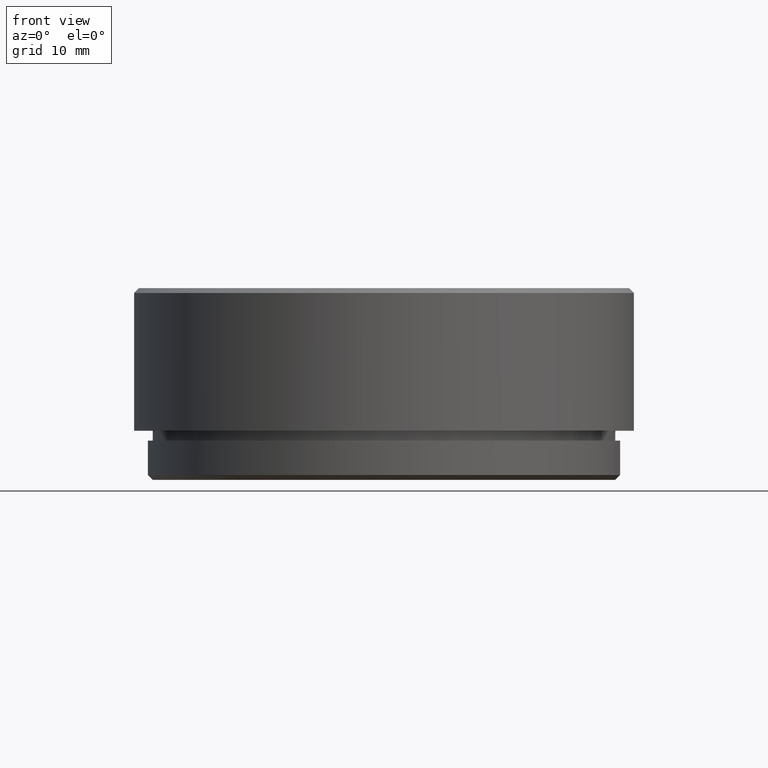
[diagram: clean part render]
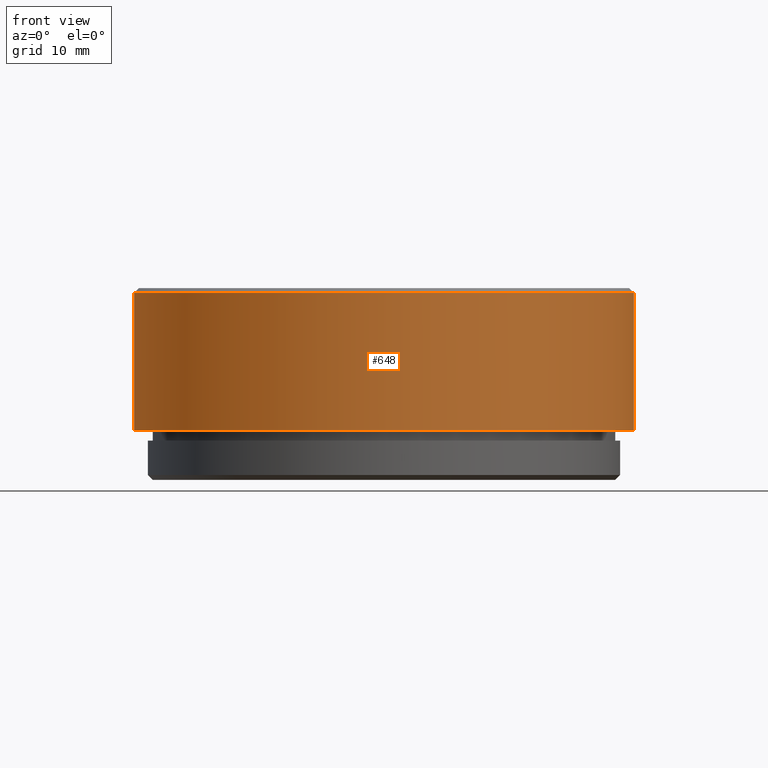
[diagram: same view with one face highlighted and labeled with its STEP entity id]
A machine part, front view. The second image highlights one B-rep face of the part: STEP entity #648.
In plain terms, the highlighted cylindrical surface (partial cylindrical patch) has radius 25.4 mm, axis along (-0, -0, -1).
Its self-contained STEP definition (entity closure, byte-faithful):
#63 = CARTESIAN_POINT ( 'NONE',  ( -25.39999999999999858, 0.000000000000000000, 5.000000000000000000 ) ) ;
#65 = VERTEX_POINT ( 'NONE', #1791 ) ;
#110 = CYLINDRICAL_SURFACE ( 'NONE', #793, 25.39999999999999858 ) ;
#154 = DIRECTION ( 'NONE',  ( 0.000000000000000000, 0.000000000000000000, -1.000000000000000000 ) ) ;
#265 = CARTESIAN_POINT ( 'NONE',  ( 25.39999999999999858, 3.110602869834276865E-15, 19.50000000000000000 ) ) ;
#281 = CIRCLE ( 'NONE', #1867, 25.39999999999999858 ) ;
#287 = DIRECTION ( 'NONE',  ( -0.000000000000000000, -0.000000000000000000, -1.000000000000000000 ) ) ;
#310 = CIRCLE ( 'NONE', #624, 25.39999999999999858 ) ;
#315 = VECTOR ( 'NONE', #1289, 1000.000000000000000 ) ;
#429 = CARTESIAN_POINT ( 'NONE',  ( 25.39999999999999858, 3.110602869834276865E-15, 18.99999999999998579 ) ) ;
#439 = CARTESIAN_POINT ( 'NONE',  ( 0.000000000000000000, 0.000000000000000000, 19.50000000000000000 ) ) ;
#547 = CARTESIAN_POINT ( 'NONE',  ( -25.39999999999999858, 0.000000000000000000, 19.50000000000000000 ) ) ;
#584 = EDGE_CURVE ( 'NONE', #65, #1379, #310, .T. ) ;
#624 = AXIS2_PLACEMENT_3D ( 'NONE', #1426, #1870, #1293 ) ;
#648 = ADVANCED_FACE ( 'NONE', ( #936 ), #110, .T. ) ;
#703 = EDGE_LOOP ( 'NONE', ( #1282, #1677, #1571, #1725 ) ) ;
#709 = DIRECTION ( 'NONE',  ( -1.000000000000000000, 0.000000000000000000, 0.000000000000000000 ) ) ;
#753 = DIRECTION ( 'NONE',  ( -0.000000000000000000, -0.000000000000000000, -1.000000000000000000 ) ) ;
#793 = AXIS2_PLACEMENT_3D ( 'NONE', #439, #287, #709 ) ;
#823 = EDGE_CURVE ( 'NONE', #1712, #65, #1455, .T. ) ;
#871 = CARTESIAN_POINT ( 'NONE',  ( 0.000000000000000000, 0.000000000000000000, 18.99999999999998579 ) ) ;
#936 = FACE_OUTER_BOUND ( 'NONE', #703, .T. ) ;
#962 = CARTESIAN_POINT ( 'NONE',  ( -25.39999999999999858, 0.000000000000000000, 18.99999999999998579 ) ) ;
#1136 = VERTEX_POINT ( 'NONE', #962 ) ;
#1179 = VECTOR ( 'NONE', #753, 1000.000000000000000 ) ;
#1278 = EDGE_CURVE ( 'NONE', #1712, #1136, #281, .T. ) ;
#1282 = ORIENTED_EDGE ( 'NONE', *, *, #823, .F. ) ;
#1289 = DIRECTION ( 'NONE',  ( -0.000000000000000000, -0.000000000000000000, -1.000000000000000000 ) ) ;
#1293 = DIRECTION ( 'NONE',  ( -1.000000000000000000, 0.000000000000000000, 0.000000000000000000 ) ) ;
#1379 = VERTEX_POINT ( 'NONE', #63 ) ;
#1426 = CARTESIAN_POINT ( 'NONE',  ( 0.000000000000000000, 0.000000000000000000, 5.000000000000000000 ) ) ;
#1455 = LINE ( 'NONE', #265, #1179 ) ;
#1490 = EDGE_CURVE ( 'NONE', #1136, #1379, #1748, .T. ) ;
#1571 = ORIENTED_EDGE ( 'NONE', *, *, #1490, .T. ) ;
#1677 = ORIENTED_EDGE ( 'NONE', *, *, #1278, .T. ) ;
#1712 = VERTEX_POINT ( 'NONE', #429 ) ;
#1725 = ORIENTED_EDGE ( 'NONE', *, *, #584, .F. ) ;
#1748 = LINE ( 'NONE', #547, #315 ) ;
#1770 = DIRECTION ( 'NONE',  ( 1.000000000000000000, 0.000000000000000000, 0.000000000000000000 ) ) ;
#1791 = CARTESIAN_POINT ( 'NONE',  ( 25.39999999999999858, 3.110602869834276865E-15, 5.000000000000000000 ) ) ;
#1867 = AXIS2_PLACEMENT_3D ( 'NONE', #871, #154, #1770 ) ;
#1870 = DIRECTION ( 'NONE',  ( 0.000000000000000000, 0.000000000000000000, -1.000000000000000000 ) ) ;